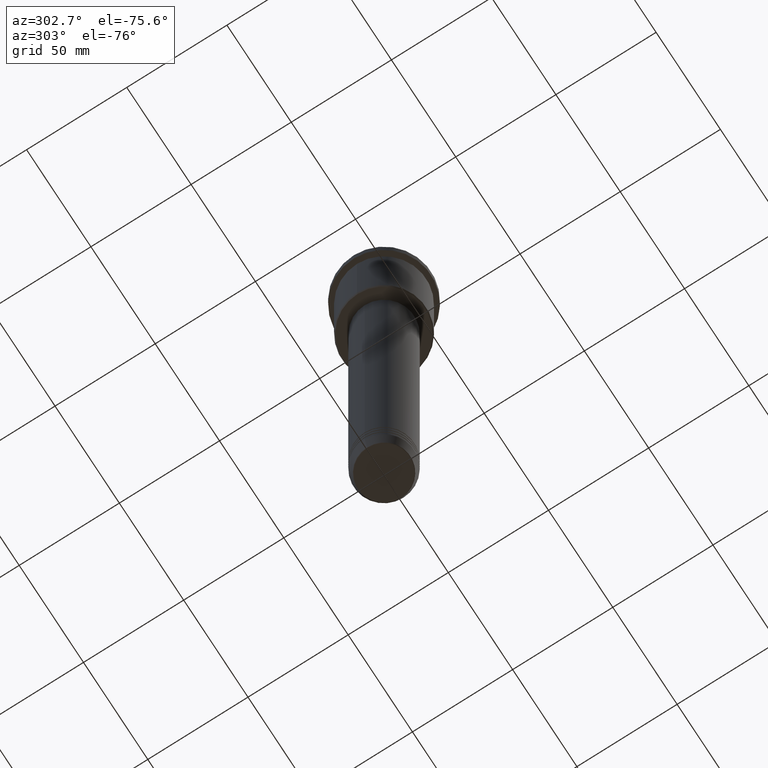
[diagram: clean part render]
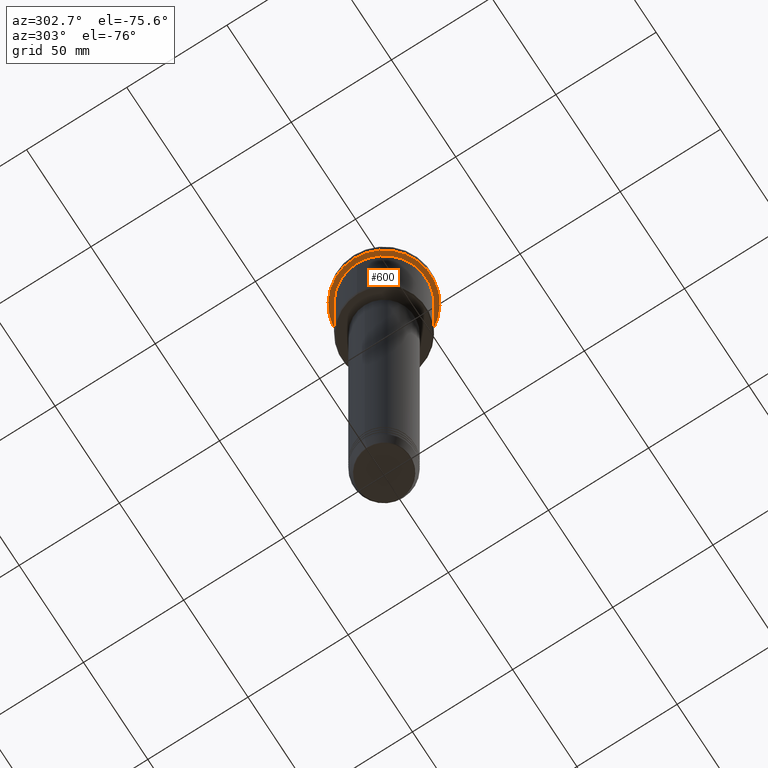
[diagram: same view with one face highlighted and labeled with its STEP entity id]
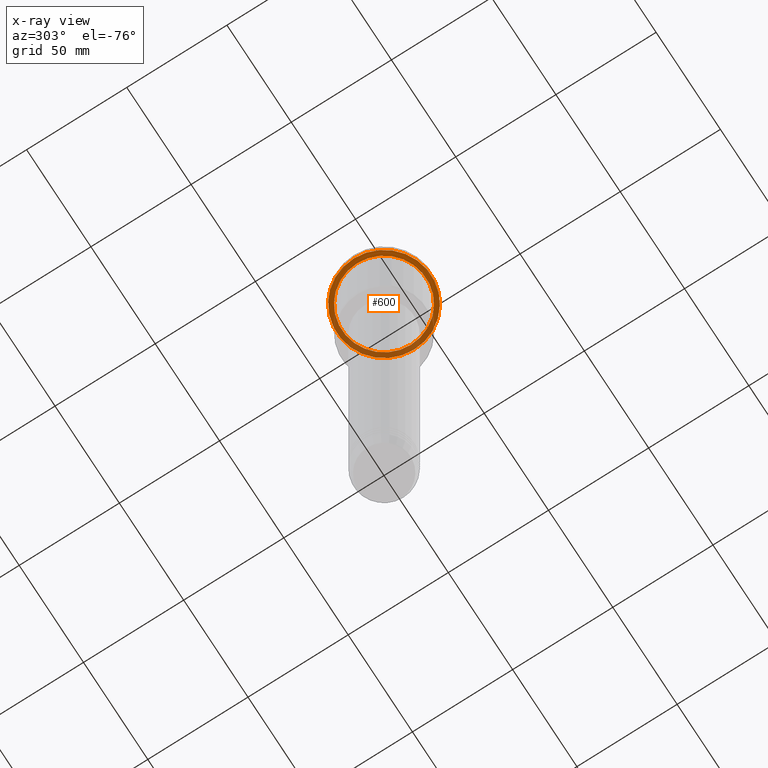
[diagram: x-ray of the same camera — body ghosted, the highlighted face saturated]
A machine part, auxiliary view. The second image highlights one B-rep face of the part: STEP entity #600.
The next image is the same camera in x-ray: the body ghosted, the highlighted face saturated — about 40% of this face is hidden behind the body in this view.
In plain terms, the highlighted planar face has unit normal (0, 0, -1).
Its self-contained STEP definition (entity closure, byte-faithful):
#5 = AXIS2_PLACEMENT_3D ( 'NONE', #1120, #1013, #465 ) ;
#37 = EDGE_CURVE ( 'NONE', #293, #565, #71, .T. ) ;
#71 = CIRCLE ( 'NONE', #150, 23.50000000000000355 ) ;
#145 = ORIENTED_EDGE ( 'NONE', *, *, #189, .F. ) ;
#150 = AXIS2_PLACEMENT_3D ( 'NONE', #870, #1182, #307 ) ;
#154 = ORIENTED_EDGE ( 'NONE', *, *, #37, .F. ) ;
#189 = EDGE_CURVE ( 'NONE', #565, #293, #383, .T. ) ;
#223 = AXIS2_PLACEMENT_3D ( 'NONE', #228, #299, #972 ) ;
#228 = CARTESIAN_POINT ( 'NONE',  ( 0.000000000000000000, 0.000000000000000000, -15.00000000000000178 ) ) ;
#293 = VERTEX_POINT ( 'NONE', #1369 ) ;
#299 = DIRECTION ( 'NONE',  ( -0.000000000000000000, -0.000000000000000000, 1.000000000000000000 ) ) ;
#307 = DIRECTION ( 'NONE',  ( 1.000000000000000000, 0.000000000000000000, 0.000000000000000000 ) ) ;
#353 = FACE_BOUND ( 'NONE', #659, .T. ) ;
#363 = VERTEX_POINT ( 'NONE', #438 ) ;
#383 = CIRCLE ( 'NONE', #5, 23.50000000000000355 ) ;
#393 = DIRECTION ( 'NONE',  ( -1.000000000000000000, 0.000000000000000000, -0.000000000000000000 ) ) ;
#438 = CARTESIAN_POINT ( 'NONE',  ( -20.99999999999999289, 0.000000000000000000, -15.00000000000000178 ) ) ;
#462 = VERTEX_POINT ( 'NONE', #888 ) ;
#465 = DIRECTION ( 'NONE',  ( 1.000000000000000000, 0.000000000000000000, 0.000000000000000000 ) ) ;
#520 = EDGE_LOOP ( 'NONE', ( #154, #145 ) ) ;
#542 = DIRECTION ( 'NONE',  ( -1.000000000000000000, 0.000000000000000000, 0.000000000000000000 ) ) ;
#550 = AXIS2_PLACEMENT_3D ( 'NONE', #721, #762, #542 ) ;
#565 = VERTEX_POINT ( 'NONE', #1361 ) ;
#594 = CIRCLE ( 'NONE', #223, 20.99999999999999289 ) ;
#600 = ADVANCED_FACE ( 'NONE', ( #353, #1249 ), #724, .T. ) ;
#659 = EDGE_LOOP ( 'NONE', ( #1195, #1128 ) ) ;
#721 = CARTESIAN_POINT ( 'NONE',  ( 0.000000000000000000, 0.000000000000000000, -15.00000000000000178 ) ) ;
#724 = PLANE ( 'NONE',  #975 ) ;
#762 = DIRECTION ( 'NONE',  ( -0.000000000000000000, -0.000000000000000000, 1.000000000000000000 ) ) ;
#795 = DIRECTION ( 'NONE',  ( 0.000000000000000000, 0.000000000000000000, -1.000000000000000000 ) ) ;
#870 = CARTESIAN_POINT ( 'NONE',  ( 0.000000000000000000, 0.000000000000000000, -15.00000000000000178 ) ) ;
#888 = CARTESIAN_POINT ( 'NONE',  ( 20.99999999999999289, 2.571758278209440872E-15, -15.00000000000000178 ) ) ;
#972 = DIRECTION ( 'NONE',  ( -1.000000000000000000, 0.000000000000000000, 0.000000000000000000 ) ) ;
#975 = AXIS2_PLACEMENT_3D ( 'NONE', #1380, #795, #393 ) ;
#1013 = DIRECTION ( 'NONE',  ( -0.000000000000000000, -0.000000000000000000, 1.000000000000000000 ) ) ;
#1028 = EDGE_CURVE ( 'NONE', #462, #363, #1401, .T. ) ;
#1120 = CARTESIAN_POINT ( 'NONE',  ( 0.000000000000000000, 0.000000000000000000, -15.00000000000000178 ) ) ;
#1128 = ORIENTED_EDGE ( 'NONE', *, *, #1028, .T. ) ;
#1182 = DIRECTION ( 'NONE',  ( -0.000000000000000000, -0.000000000000000000, 1.000000000000000000 ) ) ;
#1195 = ORIENTED_EDGE ( 'NONE', *, *, #1377, .T. ) ;
#1249 = FACE_OUTER_BOUND ( 'NONE', #520, .T. ) ;
#1361 = CARTESIAN_POINT ( 'NONE',  ( -23.50000000000000711, 2.877919977996281109E-15, -15.00000000000000178 ) ) ;
#1369 = CARTESIAN_POINT ( 'NONE',  ( 23.50000000000000355, 0.000000000000000000, -15.00000000000000178 ) ) ;
#1377 = EDGE_CURVE ( 'NONE', #363, #462, #594, .T. ) ;
#1380 = CARTESIAN_POINT ( 'NONE',  ( 0.000000000000000000, 23.50000000000000355, -15.00000000000000178 ) ) ;
#1401 = CIRCLE ( 'NONE', #550, 20.99999999999999289 ) ;